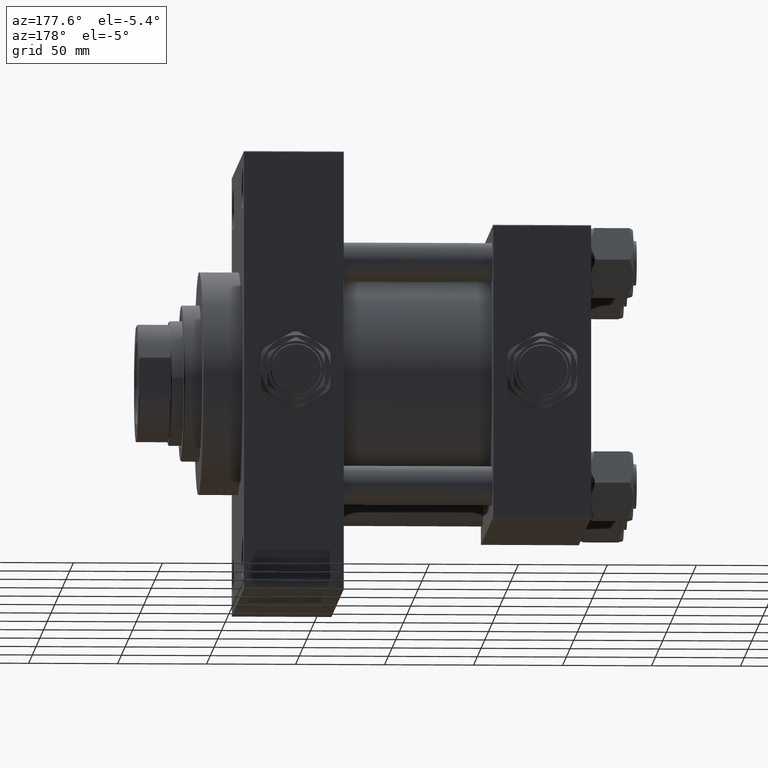
[diagram: clean part render]
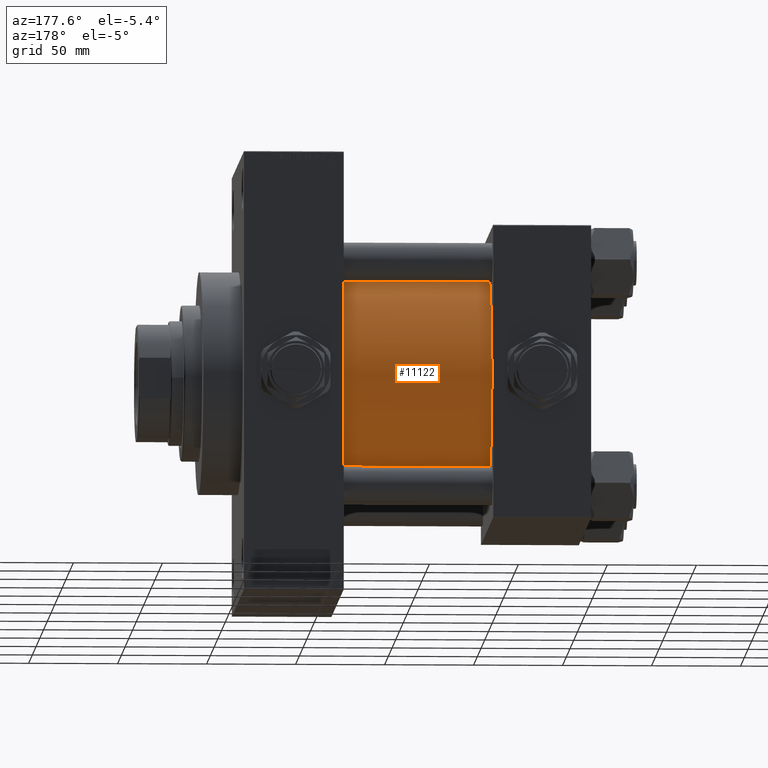
[diagram: same view with one face highlighted and labeled with its STEP entity id]
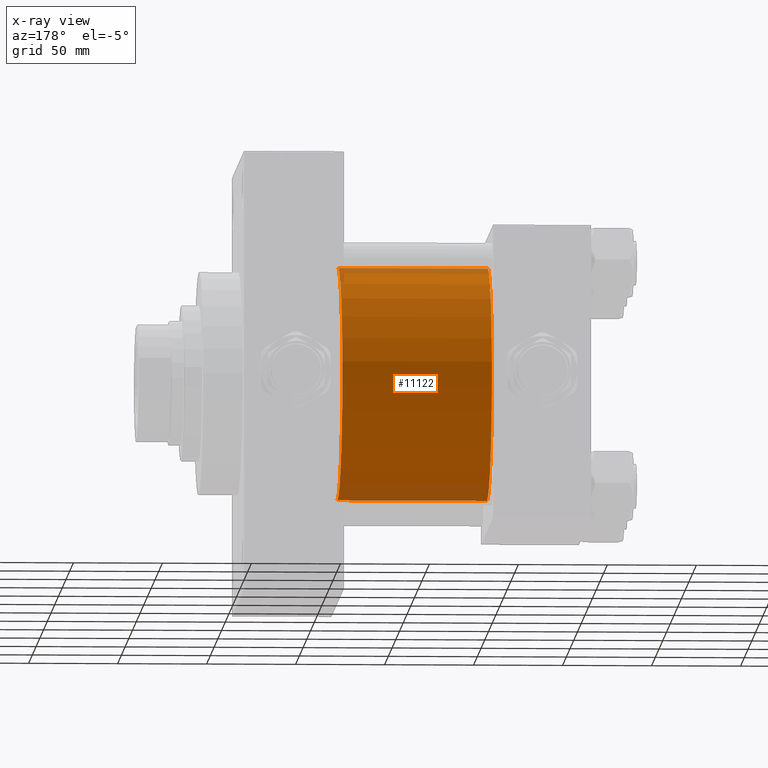
[diagram: x-ray of the same camera — body ghosted, the highlighted face saturated]
A machine part, auxiliary view. The second image highlights one B-rep face of the part: STEP entity #11122.
The next image is the same camera in x-ray: the body ghosted, the highlighted face saturated — about 10% of this face is hidden behind the body in this view.
In plain terms, the highlighted cylindrical surface (partial cylindrical patch) has radius 65.5 mm, axis along (-1, -0, -0).
Its self-contained STEP definition (entity closure, byte-faithful):
#482 = CYLINDRICAL_SURFACE ( 'NONE', #9502, 65.50000000000001421 ) ;
#1040 = CARTESIAN_POINT ( 'NONE',  ( 139.0000000000000000, -2.602085213965210642E-15, 65.50000000000001421 ) ) ;
#3866 = VECTOR ( 'NONE', #25929, 1000.000000000000000 ) ;
#4041 = DIRECTION ( 'NONE',  ( 0.000000000000000000, 0.000000000000000000, 1.000000000000000000 ) ) ;
#4543 = CARTESIAN_POINT ( 'NONE',  ( 139.0000000000000000, -2.602085213965210642E-15, 0.000000000000000000 ) ) ;
#5676 = CARTESIAN_POINT ( 'NONE',  ( 54.99999999999999289, 5.419351320449953395E-15, -65.50000000000001421 ) ) ;
#8006 = CARTESIAN_POINT ( 'NONE',  ( 54.99999999999999289, -2.602085213965210642E-15, 65.50000000000001421 ) ) ;
#8198 = ORIENTED_EDGE ( 'NONE', *, *, #25128, .F. ) ;
#8847 = DIRECTION ( 'NONE',  ( -1.000000000000000000, -0.000000000000000000, -0.000000000000000000 ) ) ;
#9502 = AXIS2_PLACEMENT_3D ( 'NONE', #4543, #8847, #4041 ) ;
#10754 = CARTESIAN_POINT ( 'NONE',  ( 139.0000000000000000, 5.419351320449953395E-15, -65.50000000000001421 ) ) ;
#11122 = ADVANCED_FACE ( 'NONE', ( #35375 ), #482, .T. ) ;
#13227 = CARTESIAN_POINT ( 'NONE',  ( 139.0000000000000000, -2.602085213965210642E-15, 0.000000000000000000 ) ) ;
#13440 = DIRECTION ( 'NONE',  ( -1.000000000000000000, -0.000000000000000000, -0.000000000000000000 ) ) ;
#13522 = VECTOR ( 'NONE', #13440, 1000.000000000000000 ) ;
#14112 = CARTESIAN_POINT ( 'NONE',  ( 139.0000000000000000, -2.602085213965210642E-15, 65.50000000000001421 ) ) ;
#17344 = EDGE_LOOP ( 'NONE', ( #8198, #26029, #48718, #33229 ) ) ;
#17852 = CARTESIAN_POINT ( 'NONE',  ( 139.0000000000000000, 5.419351320449953395E-15, -65.50000000000001421 ) ) ;
#19132 = DIRECTION ( 'NONE',  ( 0.000000000000000000, 0.000000000000000000, 1.000000000000000000 ) ) ;
#21025 = LINE ( 'NONE', #1040, #13522 ) ;
#22679 = CARTESIAN_POINT ( 'NONE',  ( 54.99999999999999289, -2.602085213965210642E-15, 0.000000000000000000 ) ) ;
#24639 = CIRCLE ( 'NONE', #31088, 65.50000000000001421 ) ;
#24863 = VERTEX_POINT ( 'NONE', #10754 ) ;
#25128 = EDGE_CURVE ( 'NONE', #24863, #49790, #24639, .T. ) ;
#25929 = DIRECTION ( 'NONE',  ( -1.000000000000000000, -0.000000000000000000, -0.000000000000000000 ) ) ;
#26029 = ORIENTED_EDGE ( 'NONE', *, *, #47286, .T. ) ;
#28598 = EDGE_CURVE ( 'NONE', #49399, #28826, #39177, .T. ) ;
#28826 = VERTEX_POINT ( 'NONE', #8006 ) ;
#30511 = DIRECTION ( 'NONE',  ( 1.000000000000000000, -0.000000000000000000, -0.000000000000000000 ) ) ;
#31088 = AXIS2_PLACEMENT_3D ( 'NONE', #13227, #33182, #35963 ) ;
#33182 = DIRECTION ( 'NONE',  ( 1.000000000000000000, 0.000000000000000000, 0.000000000000000000 ) ) ;
#33229 = ORIENTED_EDGE ( 'NONE', *, *, #41676, .F. ) ;
#35375 = FACE_OUTER_BOUND ( 'NONE', #17344, .T. ) ;
#35963 = DIRECTION ( 'NONE',  ( 0.000000000000000000, 0.000000000000000000, -1.000000000000000000 ) ) ;
#39177 = CIRCLE ( 'NONE', #44027, 65.50000000000001421 ) ;
#41676 = EDGE_CURVE ( 'NONE', #49790, #28826, #21025, .T. ) ;
#44027 = AXIS2_PLACEMENT_3D ( 'NONE', #22679, #30511, #19132 ) ;
#47286 = EDGE_CURVE ( 'NONE', #24863, #49399, #49657, .T. ) ;
#48718 = ORIENTED_EDGE ( 'NONE', *, *, #28598, .T. ) ;
#49399 = VERTEX_POINT ( 'NONE', #5676 ) ;
#49657 = LINE ( 'NONE', #17852, #3866 ) ;
#49790 = VERTEX_POINT ( 'NONE', #14112 ) ;